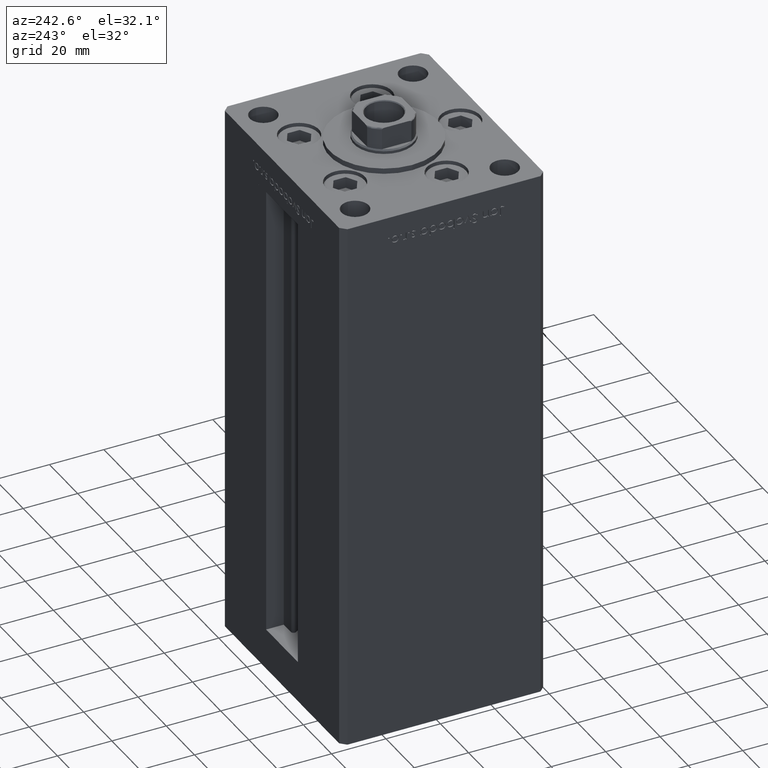
[diagram: clean part render]
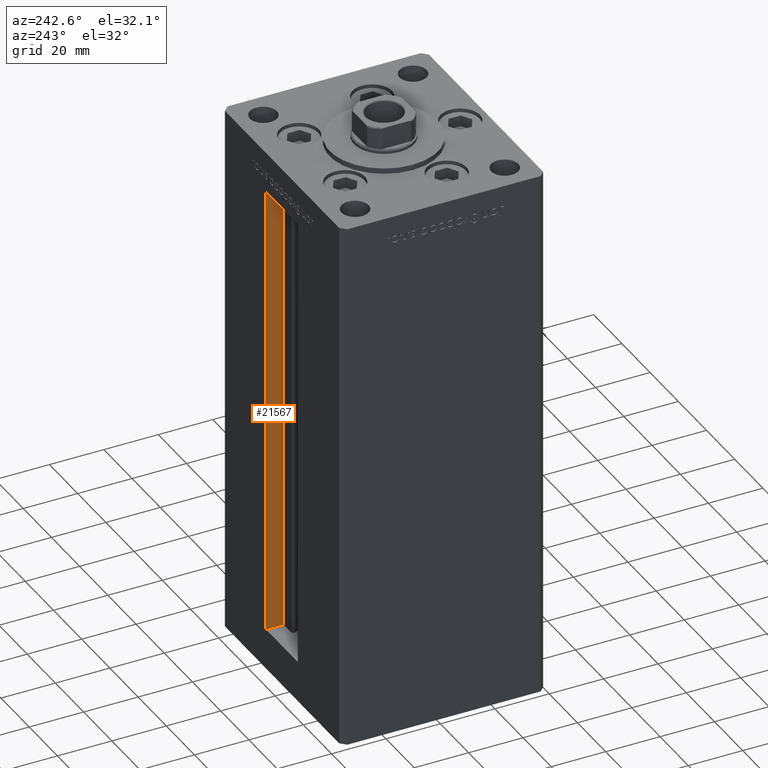
[diagram: same view with one face highlighted and labeled with its STEP entity id]
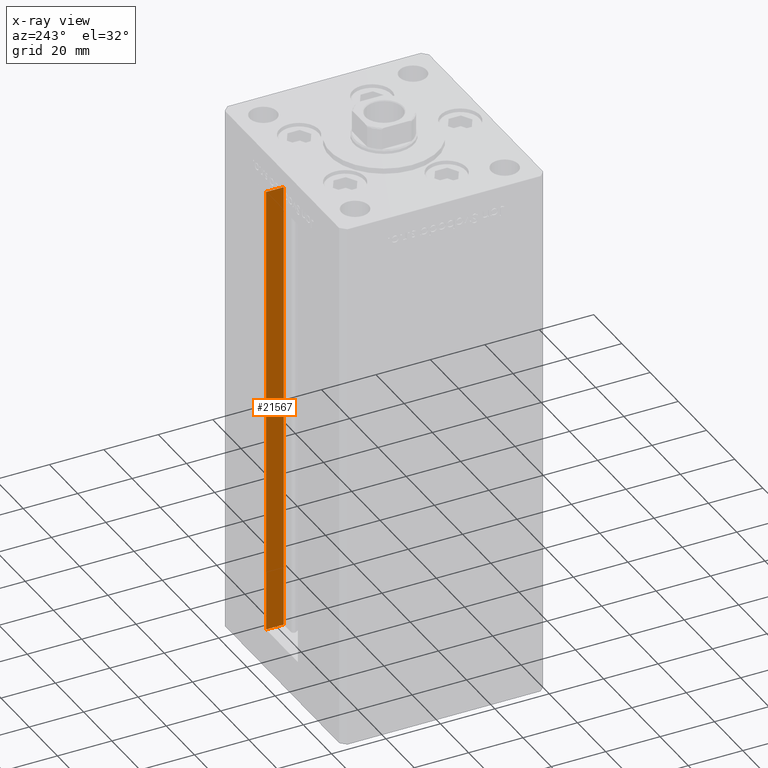
[diagram: x-ray of the same camera — body ghosted, the highlighted face saturated]
A machine part, auxiliary view. The second image highlights one B-rep face of the part: STEP entity #21567.
The next image is the same camera in x-ray: the body ghosted, the highlighted face saturated — about 0% of this face is hidden behind the body in this view.
In plain terms, the highlighted planar face has unit normal (1, 0, 0).
Its self-contained STEP definition (entity closure, byte-faithful):
#2312 = DIRECTION ( 'NONE',  ( 0.000000000000000000, 1.000000000000000000, 0.000000000000000000 ) ) ;
#2418 = CARTESIAN_POINT ( 'NONE',  ( 11.25000000000000000, 30.99999999999999289, 0.000000000000000000 ) ) ;
#2493 = VERTEX_POINT ( 'NONE', #49414 ) ;
#4151 = CARTESIAN_POINT ( 'NONE',  ( 11.25000000000000000, 0.000000000000000000, 168.5000000000000000 ) ) ;
#6205 = CARTESIAN_POINT ( 'NONE',  ( 11.25000000000000000, 37.50000000000000000, 0.000000000000000000 ) ) ;
#7217 = EDGE_CURVE ( 'NONE', #24776, #31519, #39828, .T. ) ;
#7869 = DIRECTION ( 'NONE',  ( -0.000000000000000000, -0.000000000000000000, 1.000000000000000000 ) ) ;
#8899 = ORIENTED_EDGE ( 'NONE', *, *, #7217, .F. ) ;
#10069 = DIRECTION ( 'NONE',  ( -0.000000000000000000, -0.000000000000000000, 1.000000000000000000 ) ) ;
#10091 = VECTOR ( 'NONE', #10069, 1000.000000000000000 ) ;
#11849 = CARTESIAN_POINT ( 'NONE',  ( 11.25000000000000000, 37.50000000000000000, 0.000000000000000000 ) ) ;
#15937 = CARTESIAN_POINT ( 'NONE',  ( 11.24999999999999289, 37.50000000000000000, 168.5000000000000000 ) ) ;
#16021 = EDGE_CURVE ( 'NONE', #31519, #2493, #24236, .T. ) ;
#16606 = VERTEX_POINT ( 'NONE', #20162 ) ;
#18006 = DIRECTION ( 'NONE',  ( 0.000000000000000000, 0.000000000000000000, -1.000000000000000000 ) ) ;
#20162 = CARTESIAN_POINT ( 'NONE',  ( 11.25000000000000000, 30.99999999999999289, 0.000000000000000000 ) ) ;
#20613 = VECTOR ( 'NONE', #2312, 1000.000000000000000 ) ;
#21567 = ADVANCED_FACE ( 'NONE', ( #38600 ), #35160, .F. ) ;
#21961 = CARTESIAN_POINT ( 'NONE',  ( 11.25000000000000000, 30.99999999999999289, 0.000000000000000000 ) ) ;
#24236 = LINE ( 'NONE', #4151, #48780 ) ;
#24776 = VERTEX_POINT ( 'NONE', #6205 ) ;
#25843 = EDGE_CURVE ( 'NONE', #16606, #24776, #38494, .T. ) ;
#26616 = CARTESIAN_POINT ( 'NONE',  ( 11.25000000000000000, 30.99999999999999289, 0.000000000000000000 ) ) ;
#26852 = EDGE_LOOP ( 'NONE', ( #8899, #38342, #52049, #30647 ) ) ;
#30647 = ORIENTED_EDGE ( 'NONE', *, *, #16021, .F. ) ;
#30981 = VECTOR ( 'NONE', #7869, 1000.000000000000000 ) ;
#31519 = VERTEX_POINT ( 'NONE', #15937 ) ;
#35160 = PLANE ( 'NONE',  #41545 ) ;
#38342 = ORIENTED_EDGE ( 'NONE', *, *, #25843, .F. ) ;
#38494 = LINE ( 'NONE', #26616, #20613 ) ;
#38600 = FACE_OUTER_BOUND ( 'NONE', #26852, .T. ) ;
#38857 = DIRECTION ( 'NONE',  ( 1.000000000000000000, -0.000000000000000000, 0.000000000000000000 ) ) ;
#39828 = LINE ( 'NONE', #11849, #30981 ) ;
#41545 = AXIS2_PLACEMENT_3D ( 'NONE', #2418, #38857, #18006 ) ;
#46404 = EDGE_CURVE ( 'NONE', #16606, #2493, #49152, .T. ) ;
#48220 = DIRECTION ( 'NONE',  ( -0.000000000000000000, -1.000000000000000000, 0.000000000000000000 ) ) ;
#48780 = VECTOR ( 'NONE', #48220, 1000.000000000000000 ) ;
#49152 = LINE ( 'NONE', #21961, #10091 ) ;
#49414 = CARTESIAN_POINT ( 'NONE',  ( 11.25000000000000000, 30.99999999999999289, 168.5000000000000000 ) ) ;
#52049 = ORIENTED_EDGE ( 'NONE', *, *, #46404, .T. ) ;